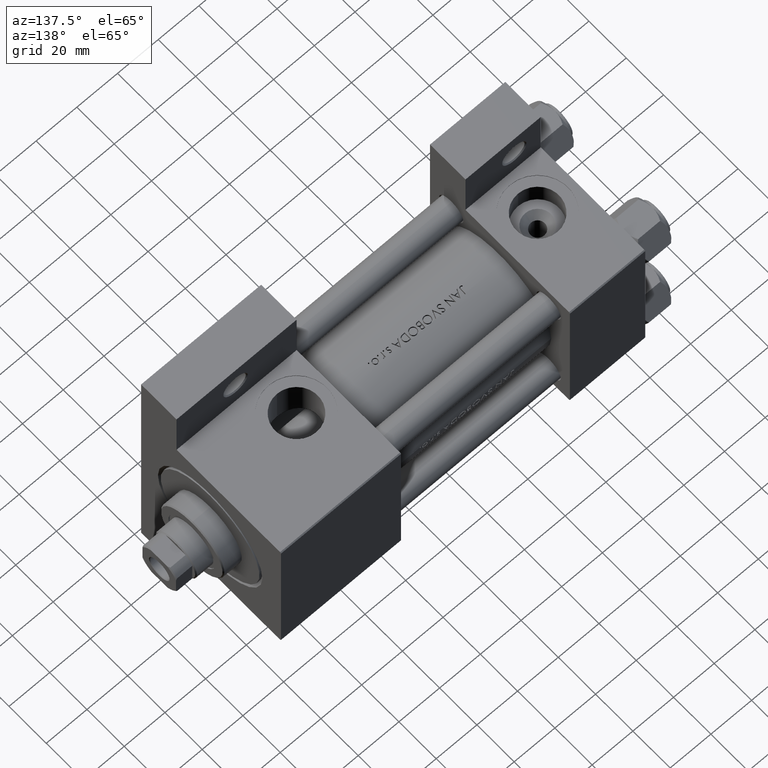
[diagram: clean part render]
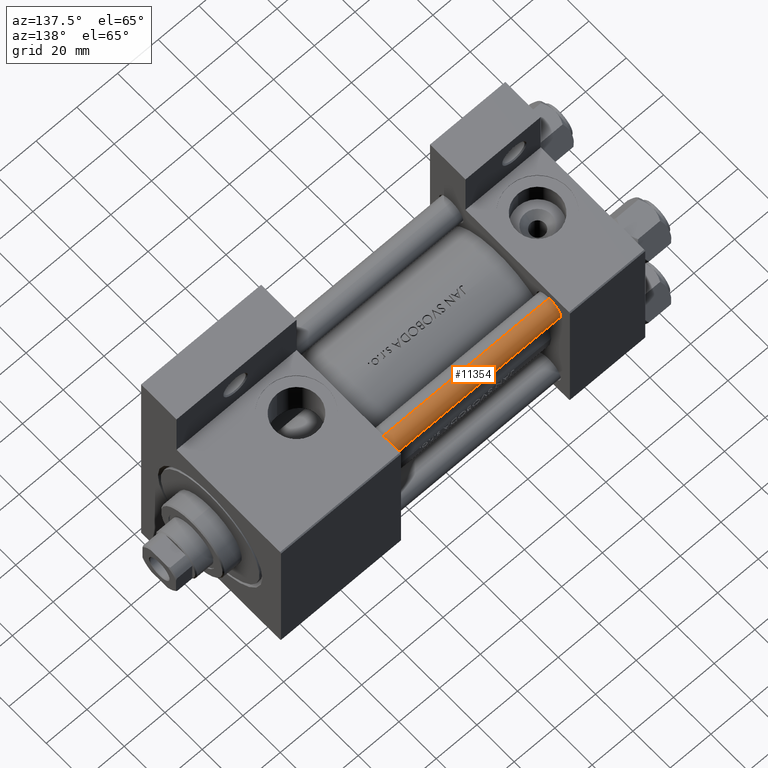
[diagram: same view with one face highlighted and labeled with its STEP entity id]
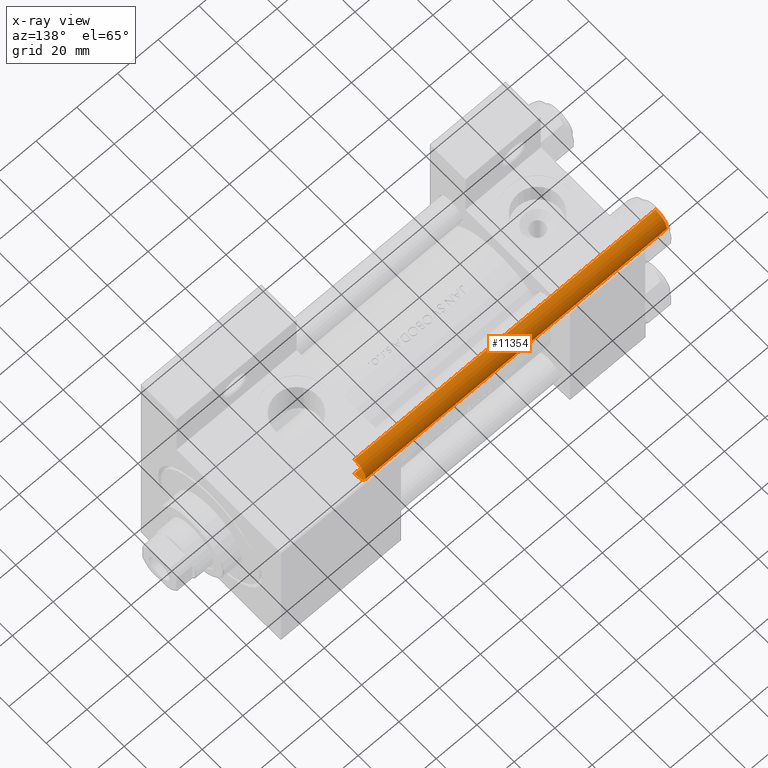
[diagram: x-ray of the same camera — body ghosted, the highlighted face saturated]
A machine part, auxiliary view. The second image highlights one B-rep face of the part: STEP entity #11354.
The next image is the same camera in x-ray: the body ghosted, the highlighted face saturated — about 0% of this face is hidden behind the body in this view.
In plain terms, the highlighted cylindrical surface (edge-blend (fillet) strip) has radius 6 mm, axis along (-1, -0, -0).
Its self-contained STEP definition (entity closure, byte-faithful):
#2606 = ORIENTED_EDGE ( 'NONE', *, *, #41692, .T. ) ;
#3539 = CARTESIAN_POINT ( 'NONE',  ( 6.000000000000000888, 7.347880794884120722E-16, 149.0000000000000000 ) ) ;
#3607 = CARTESIAN_POINT ( 'NONE',  ( -6.000000000000000888, 0.000000000000000000, 149.0000000000000000 ) ) ;
#6010 = DIRECTION ( 'NONE',  ( 1.000000000000000000, 0.000000000000000000, 0.000000000000000000 ) ) ;
#6409 = AXIS2_PLACEMENT_3D ( 'NONE', #25152, #13477, #47836 ) ;
#6554 = LINE ( 'NONE', #3539, #33699 ) ;
#9531 = CARTESIAN_POINT ( 'NONE',  ( 0.000000000000000000, 0.000000000000000000, 148.5000000000000000 ) ) ;
#11354 = ADVANCED_FACE ( 'NONE', ( #44096 ), #12993, .T. ) ;
#12993 = CYLINDRICAL_SURFACE ( 'NONE', #6409, 6.000000000000000888 ) ;
#13477 = DIRECTION ( 'NONE',  ( -0.000000000000000000, -0.000000000000000000, -1.000000000000000000 ) ) ;
#15497 = ORIENTED_EDGE ( 'NONE', *, *, #20244, .F. ) ;
#16661 = EDGE_CURVE ( 'NONE', #28466, #18666, #26760, .T. ) ;
#18286 = AXIS2_PLACEMENT_3D ( 'NONE', #9531, #25178, #6010 ) ;
#18666 = VERTEX_POINT ( 'NONE', #43429 ) ;
#18773 = CARTESIAN_POINT ( 'NONE',  ( 0.000000000000000000, 0.000000000000000000, 0.5000000000000281997 ) ) ;
#20244 = EDGE_CURVE ( 'NONE', #36666, #18666, #26767, .T. ) ;
#20446 = ORIENTED_EDGE ( 'NONE', *, *, #16661, .T. ) ;
#25152 = CARTESIAN_POINT ( 'NONE',  ( 0.000000000000000000, 0.000000000000000000, 149.0000000000000000 ) ) ;
#25178 = DIRECTION ( 'NONE',  ( 0.000000000000000000, 0.000000000000000000, -1.000000000000000000 ) ) ;
#26222 = CARTESIAN_POINT ( 'NONE',  ( -6.000000000000000888, 0.000000000000000000, 148.5000000000000000 ) ) ;
#26223 = CARTESIAN_POINT ( 'NONE',  ( 6.000000000000000888, 7.347880794884120722E-16, 0.5000000000000281997 ) ) ;
#26760 = CIRCLE ( 'NONE', #40289, 6.000000000000000888 ) ;
#26767 = LINE ( 'NONE', #3607, #42679 ) ;
#28158 = CARTESIAN_POINT ( 'NONE',  ( 6.000000000000000888, 7.347880794884120722E-16, 148.5000000000000000 ) ) ;
#28466 = VERTEX_POINT ( 'NONE', #26223 ) ;
#28626 = EDGE_CURVE ( 'NONE', #36666, #46620, #43764, .T. ) ;
#33699 = VECTOR ( 'NONE', #36937, 1000.000000000000000 ) ;
#33967 = DIRECTION ( 'NONE',  ( -0.000000000000000000, -0.000000000000000000, 1.000000000000000000 ) ) ;
#36666 = VERTEX_POINT ( 'NONE', #26222 ) ;
#36937 = DIRECTION ( 'NONE',  ( -0.000000000000000000, -0.000000000000000000, -1.000000000000000000 ) ) ;
#37496 = DIRECTION ( 'NONE',  ( -0.000000000000000000, -0.000000000000000000, -1.000000000000000000 ) ) ;
#40289 = AXIS2_PLACEMENT_3D ( 'NONE', #18773, #33967, #41210 ) ;
#41210 = DIRECTION ( 'NONE',  ( 1.000000000000000000, 0.000000000000000000, 0.000000000000000000 ) ) ;
#41692 = EDGE_CURVE ( 'NONE', #46620, #28466, #6554, .T. ) ;
#42679 = VECTOR ( 'NONE', #37496, 1000.000000000000000 ) ;
#42929 = ORIENTED_EDGE ( 'NONE', *, *, #28626, .T. ) ;
#43429 = CARTESIAN_POINT ( 'NONE',  ( -6.000000000000000888, 0.000000000000000000, 0.5000000000000281997 ) ) ;
#43764 = CIRCLE ( 'NONE', #18286, 6.000000000000000888 ) ;
#44096 = FACE_OUTER_BOUND ( 'NONE', #47699, .T. ) ;
#46620 = VERTEX_POINT ( 'NONE', #28158 ) ;
#47699 = EDGE_LOOP ( 'NONE', ( #42929, #2606, #20446, #15497 ) ) ;
#47836 = DIRECTION ( 'NONE',  ( -1.000000000000000000, 0.000000000000000000, 0.000000000000000000 ) ) ;